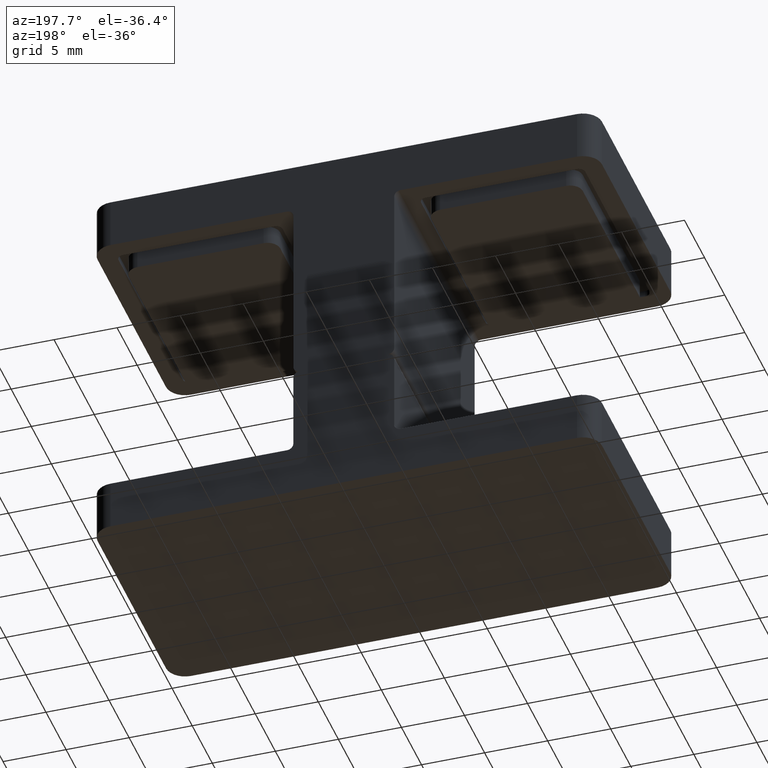
[diagram: clean part render]
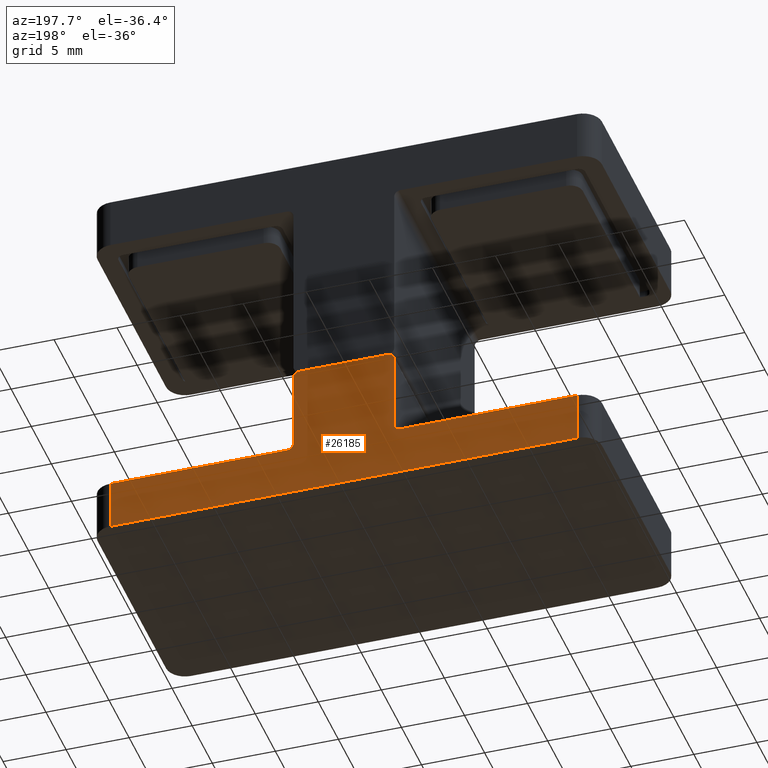
[diagram: same view with one face highlighted and labeled with its STEP entity id]
A machine part, auxiliary view. The second image highlights one B-rep face of the part: STEP entity #26185.
In plain terms, the highlighted planar face has unit normal (0, -1, 0).
Its self-contained STEP definition (entity closure, byte-faithful):
#114 = ORIENTED_EDGE ( 'NONE', *, *, #26224, .T. ) ;
#319 = ORIENTED_EDGE ( 'NONE', *, *, #17148, .T. ) ;
#591 = FACE_OUTER_BOUND ( 'NONE', #15390, .T. ) ;
#1083 = EDGE_CURVE ( 'NONE', #1461, #19333, #8409, .T. ) ;
#1118 = ORIENTED_EDGE ( 'NONE', *, *, #13796, .F. ) ;
#1461 = VERTEX_POINT ( 'NONE', #10369 ) ;
#1496 = EDGE_CURVE ( 'NONE', #20446, #25047, #14486, .T. ) ;
#2066 = CARTESIAN_POINT ( 'NONE',  ( 4.500000000000000888, 9.999999999999998224, 4.000000000000000000 ) ) ;
#2198 = CIRCLE ( 'NONE', #14446, 0.5000000000000004441 ) ;
#2402 = LINE ( 'NONE', #30127, #8797 ) ;
#2965 = EDGE_CURVE ( 'NONE', #31846, #25047, #2198, .T. ) ;
#3580 = ORIENTED_EDGE ( 'NONE', *, *, #1083, .T. ) ;
#3630 = ORIENTED_EDGE ( 'NONE', *, *, #19592, .T. ) ;
#3686 = VERTEX_POINT ( 'NONE', #10339 ) ;
#3964 = DIRECTION ( 'NONE',  ( 0.000000000000000000, 0.000000000000000000, -1.000000000000000000 ) ) ;
#4094 = DIRECTION ( 'NONE',  ( -0.000000000000000000, 1.000000000000000000, -0.000000000000000000 ) ) ;
#4235 = CIRCLE ( 'NONE', #18001, 0.5000000000000004441 ) ;
#4454 = VERTEX_POINT ( 'NONE', #4789 ) ;
#4523 = LINE ( 'NONE', #27740, #13082 ) ;
#4785 = CARTESIAN_POINT ( 'NONE',  ( -19.99999999999999289, 9.999999999999998224, 4.000000000000000000 ) ) ;
#4789 = CARTESIAN_POINT ( 'NONE',  ( -18.49999999999999289, 9.999999999999998224, 0.000000000000000000 ) ) ;
#4820 = AXIS2_PLACEMENT_3D ( 'NONE', #14804, #4094, #6701 ) ;
#5153 = VECTOR ( 'NONE', #12927, 1000.000000000000000 ) ;
#5347 = DIRECTION ( 'NONE',  ( 0.000000000000000000, -1.000000000000000000, 0.000000000000000000 ) ) ;
#5752 = CIRCLE ( 'NONE', #10115, 0.5000000000000004441 ) ;
#6336 = LINE ( 'NONE', #13029, #5153 ) ;
#6667 = EDGE_CURVE ( 'NONE', #4454, #19296, #23009, .T. ) ;
#6701 = DIRECTION ( 'NONE',  ( 0.000000000000000000, 0.000000000000000000, -1.000000000000000000 ) ) ;
#7728 = PLANE ( 'NONE',  #23392 ) ;
#7738 = DIRECTION ( 'NONE',  ( -0.000000000000000000, -0.000000000000000000, -1.000000000000000000 ) ) ;
#8336 = LINE ( 'NONE', #16057, #26005 ) ;
#8409 = CIRCLE ( 'NONE', #4820, 0.5000000000000004441 ) ;
#8772 = VECTOR ( 'NONE', #33360, 1000.000000000000000 ) ;
#8797 = VECTOR ( 'NONE', #17228, 1000.000000000000000 ) ;
#9632 = VERTEX_POINT ( 'NONE', #32882 ) ;
#10115 = AXIS2_PLACEMENT_3D ( 'NONE', #30538, #19844, #14754 ) ;
#10339 = CARTESIAN_POINT ( 'NONE',  ( -3.500000000000000000, 9.999999999999998224, 11.19999999999999929 ) ) ;
#10369 = CARTESIAN_POINT ( 'NONE',  ( 3.499999999999999556, 9.999999999999998224, 11.19999999999999929 ) ) ;
#10606 = CARTESIAN_POINT ( 'NONE',  ( -4.000000000000000000, 9.999999999999998224, 10.69999999999999929 ) ) ;
#10890 = VERTEX_POINT ( 'NONE', #12895 ) ;
#11631 = ORIENTED_EDGE ( 'NONE', *, *, #19634, .F. ) ;
#12895 = CARTESIAN_POINT ( 'NONE',  ( 18.50000000000000711, 9.999999999999998224, 4.000000000000000000 ) ) ;
#12927 = DIRECTION ( 'NONE',  ( 0.000000000000000000, 0.000000000000000000, -1.000000000000000000 ) ) ;
#13029 = CARTESIAN_POINT ( 'NONE',  ( 18.50000000000000711, 9.999999999999998224, 4.000000000000000000 ) ) ;
#13082 = VECTOR ( 'NONE', #19354, 1000.000000000000000 ) ;
#13796 = EDGE_CURVE ( 'NONE', #1461, #3686, #15701, .T. ) ;
#14446 = AXIS2_PLACEMENT_3D ( 'NONE', #31313, #5347, #15519 ) ;
#14486 = LINE ( 'NONE', #18634, #33483 ) ;
#14754 = DIRECTION ( 'NONE',  ( 0.000000000000000000, 0.000000000000000000, -1.000000000000000000 ) ) ;
#14792 = DIRECTION ( 'NONE',  ( 0.000000000000000000, -1.000000000000000000, 0.000000000000000000 ) ) ;
#14804 = CARTESIAN_POINT ( 'NONE',  ( 3.500000000000000000, 9.999999999999998224, 10.69999999999999929 ) ) ;
#15026 = EDGE_CURVE ( 'NONE', #10890, #30723, #21506, .T. ) ;
#15390 = EDGE_LOOP ( 'NONE', ( #27483, #319, #114, #19404, #11631, #25164, #31686, #22811, #1118, #3580, #16814, #3630 ) ) ;
#15519 = DIRECTION ( 'NONE',  ( 0.000000000000000000, 0.000000000000000000, -1.000000000000000000 ) ) ;
#15701 = LINE ( 'NONE', #17116, #8772 ) ;
#15939 = DIRECTION ( 'NONE',  ( -1.000000000000000000, -0.000000000000000000, -0.000000000000000000 ) ) ;
#16057 = CARTESIAN_POINT ( 'NONE',  ( -19.99999999999999289, 9.999999999999998224, 0.000000000000000000 ) ) ;
#16814 = ORIENTED_EDGE ( 'NONE', *, *, #20634, .T. ) ;
#17116 = CARTESIAN_POINT ( 'NONE',  ( -4.000000000000000000, 9.999999999999998224, 11.19999999999999929 ) ) ;
#17148 = EDGE_CURVE ( 'NONE', #10890, #28735, #6336, .T. ) ;
#17228 = DIRECTION ( 'NONE',  ( -1.000000000000000000, -0.000000000000000000, -0.000000000000000000 ) ) ;
#17488 = CARTESIAN_POINT ( 'NONE',  ( -18.49999999999999289, 9.999999999999998224, 4.000000000000000000 ) ) ;
#18001 = AXIS2_PLACEMENT_3D ( 'NONE', #33002, #14792, #3964 ) ;
#18143 = CARTESIAN_POINT ( 'NONE',  ( 18.50000000000000711, 9.999999999999998224, 0.000000000000000000 ) ) ;
#18622 = CARTESIAN_POINT ( 'NONE',  ( -4.500000000000000888, 9.999999999999998224, 4.000000000000000000 ) ) ;
#18634 = CARTESIAN_POINT ( 'NONE',  ( -4.000000000000000000, 9.999999999999998224, 11.19999999999999929 ) ) ;
#19296 = VERTEX_POINT ( 'NONE', #17488 ) ;
#19333 = VERTEX_POINT ( 'NONE', #25663 ) ;
#19354 = DIRECTION ( 'NONE',  ( -0.000000000000000000, -0.000000000000000000, -1.000000000000000000 ) ) ;
#19404 = ORIENTED_EDGE ( 'NONE', *, *, #6667, .T. ) ;
#19592 = EDGE_CURVE ( 'NONE', #9632, #30723, #4235, .T. ) ;
#19634 = EDGE_CURVE ( 'NONE', #31846, #19296, #2402, .T. ) ;
#19844 = DIRECTION ( 'NONE',  ( -0.000000000000000000, 1.000000000000000000, -0.000000000000000000 ) ) ;
#20187 = EDGE_CURVE ( 'NONE', #20446, #3686, #5752, .T. ) ;
#20446 = VERTEX_POINT ( 'NONE', #10606 ) ;
#20634 = EDGE_CURVE ( 'NONE', #19333, #9632, #4523, .T. ) ;
#21264 = DIRECTION ( 'NONE',  ( 0.000000000000000000, -1.000000000000000000, 0.000000000000000000 ) ) ;
#21506 = LINE ( 'NONE', #25979, #33853 ) ;
#21934 = CARTESIAN_POINT ( 'NONE',  ( -4.000000000000000000, 9.999999999999998224, 4.500000000000000888 ) ) ;
#22811 = ORIENTED_EDGE ( 'NONE', *, *, #20187, .T. ) ;
#22864 = CARTESIAN_POINT ( 'NONE',  ( -18.49999999999999289, 9.999999999999998224, 4.000000000000000000 ) ) ;
#23009 = LINE ( 'NONE', #22864, #28349 ) ;
#23392 = AXIS2_PLACEMENT_3D ( 'NONE', #4785, #21264, #31739 ) ;
#25047 = VERTEX_POINT ( 'NONE', #21934 ) ;
#25164 = ORIENTED_EDGE ( 'NONE', *, *, #2965, .T. ) ;
#25663 = CARTESIAN_POINT ( 'NONE',  ( 4.000000000000000000, 9.999999999999998224, 10.69999999999999929 ) ) ;
#25979 = CARTESIAN_POINT ( 'NONE',  ( -19.99999999999999289, 9.999999999999998224, 4.000000000000000000 ) ) ;
#26005 = VECTOR ( 'NONE', #15939, 1000.000000000000000 ) ;
#26185 = ADVANCED_FACE ( 'NONE', ( #591 ), #7728, .F. ) ;
#26224 = EDGE_CURVE ( 'NONE', #28735, #4454, #8336, .T. ) ;
#27483 = ORIENTED_EDGE ( 'NONE', *, *, #15026, .F. ) ;
#27740 = CARTESIAN_POINT ( 'NONE',  ( 4.000000000000000000, 9.999999999999998224, 11.19999999999999929 ) ) ;
#27811 = DIRECTION ( 'NONE',  ( -0.000000000000000000, -0.000000000000000000, 1.000000000000000000 ) ) ;
#28349 = VECTOR ( 'NONE', #27811, 1000.000000000000000 ) ;
#28735 = VERTEX_POINT ( 'NONE', #18143 ) ;
#30127 = CARTESIAN_POINT ( 'NONE',  ( -19.99999999999999289, 9.999999999999998224, 4.000000000000000000 ) ) ;
#30538 = CARTESIAN_POINT ( 'NONE',  ( -3.500000000000000000, 9.999999999999998224, 10.69999999999999929 ) ) ;
#30723 = VERTEX_POINT ( 'NONE', #2066 ) ;
#31280 = DIRECTION ( 'NONE',  ( -1.000000000000000000, -0.000000000000000000, -0.000000000000000000 ) ) ;
#31313 = CARTESIAN_POINT ( 'NONE',  ( -4.500000000000000888, 9.999999999999998224, 4.500000000000000888 ) ) ;
#31686 = ORIENTED_EDGE ( 'NONE', *, *, #1496, .F. ) ;
#31739 = DIRECTION ( 'NONE',  ( 0.000000000000000000, -0.000000000000000000, -1.000000000000000000 ) ) ;
#31846 = VERTEX_POINT ( 'NONE', #18622 ) ;
#32882 = CARTESIAN_POINT ( 'NONE',  ( 4.000000000000000000, 9.999999999999998224, 4.500000000000000888 ) ) ;
#33002 = CARTESIAN_POINT ( 'NONE',  ( 4.500000000000000888, 9.999999999999998224, 4.500000000000000888 ) ) ;
#33360 = DIRECTION ( 'NONE',  ( -1.000000000000000000, -0.000000000000000000, -0.000000000000000000 ) ) ;
#33483 = VECTOR ( 'NONE', #7738, 1000.000000000000000 ) ;
#33853 = VECTOR ( 'NONE', #31280, 1000.000000000000000 ) ;